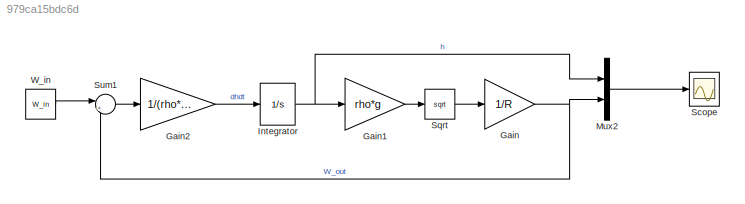
MODEL slx_979ca15bdc6d
KIND model
CONFIG AbsTol = auto
CONFIG EnableMultiTasking = on
CONFIG FixedStep = auto
CONFIG MaxStep = auto
CONFIG MinStep = auto
CONFIG PreLoadFcn = rho = 1000; A = 4; g = 9.81; \nR = 5; W_in = 100; h0 = 0; hmax = 2;
CONFIG RelTol = 1e-3
CONFIG SampleTimeConstraint = Unconstrained
CONFIG Solver = ode45
CONFIG SolverName = ode45
CONFIG StartTime = 0.0
CONFIG StopTime = 250
BLOCK [Gain] Gain
  Gain = 1/R
BLOCK [Gain] Gain1
  Gain = rho*g
BLOCK [Gain] Gain2
  Gain = 1/(rho*A)
BLOCK [Integrator] Integrator
  AttributesFormatString = IC: %<InitialCondition>
  InitialCondition = h0
  LowerSaturationLimit = 0
  Ports = [1, 1]
  UpperSaturationLimit = hmax
BLOCK [Mux] Mux2
  DisplayOption = bar
  Inputs = 2
  Ports = [2, 1]
BLOCK [Scope] Scope
  Floating = off
  NumInputPorts = 1
  Ports = [1]
  ScopeSpecificationString = Simulink.scopes.TimeScopeBlockCfg('CurrentConfiguration', extmgr.ConfigurationSet(extmgr.Configuration('Core','General UI',true),extmgr.Configuration('Core','Source UI',true),extmgr.Configuration('Sources','WiredSimulink',true,'DataLoggingVariableName','ScopeData1','DataLoggingSaveFormat','StructureWithTime','DataLoggingLimitDataPoints',true,'DataLoggingDecimation','1','DataLoggingDecimateData',tr...<+2127ch>
BLOCK [Sqrt] Sqrt
BLOCK [Sum] Sum1
  IconShape = round
  Inputs = |+-
  Ports = [2, 1]
BLOCK [Constant] W_in
  Value = W_in
LINE Gain1:1 -> Sqrt:1
LINE Gain2:1 -> Integrator:1
NET Gain:1 -> Mux2:2, Sum1:2
NET Integrator:1 -> Gain1:1, Mux2:1
LINE Mux2:1 -> Scope:1
LINE Sqrt:1 -> Gain:1
LINE Sum1:1 -> Gain2:1
LINE W_in:1 -> Sum1:1
note: NET lines group one-source signal fan-out (src -> all destinations, sorted); 1:1 wires keep LINE
